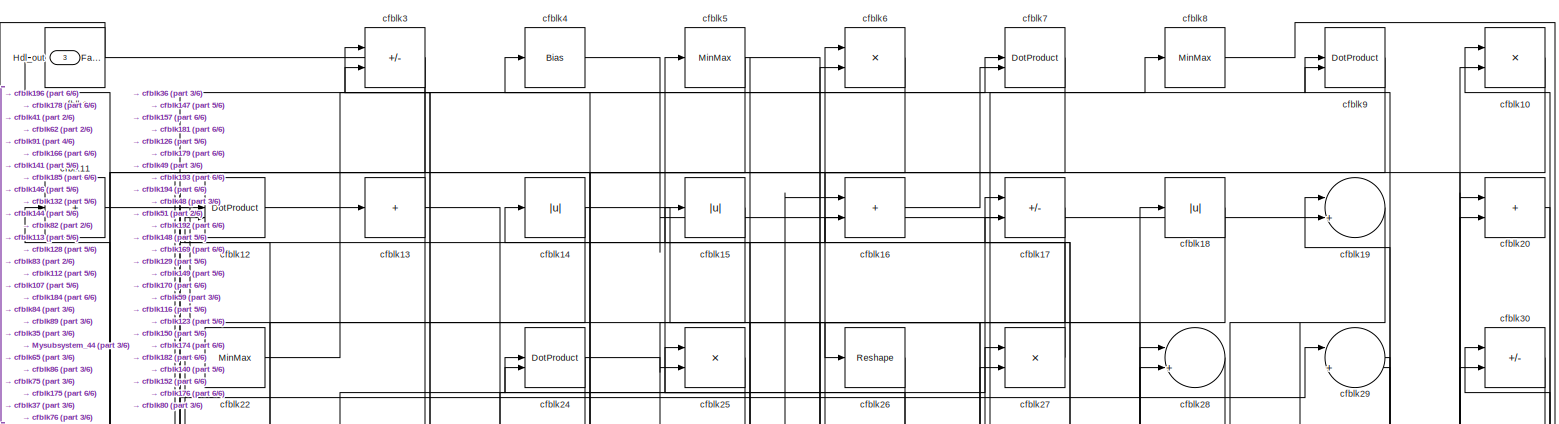
[diagram: root canvas - part 1/6, full width, top band]
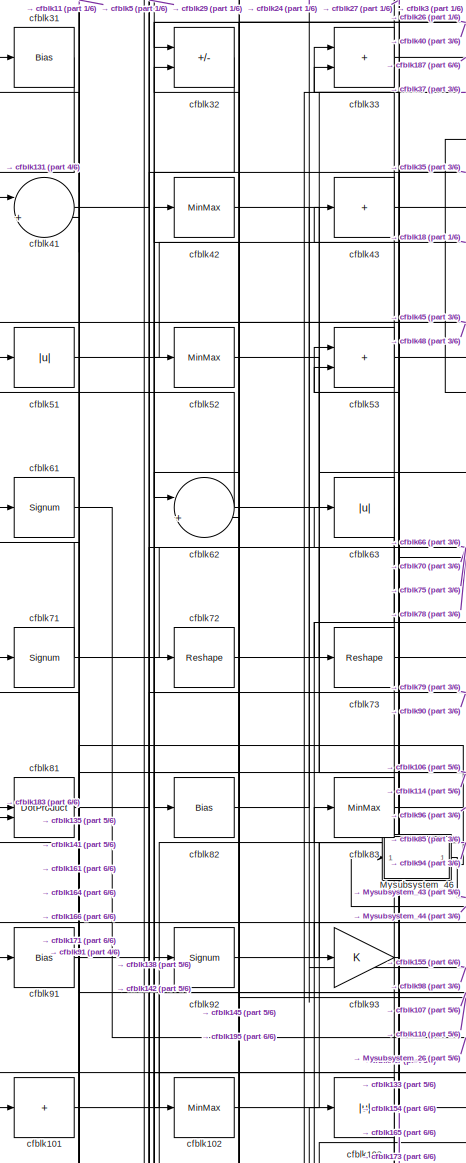
[diagram: root canvas - part 2/6, middle left region]
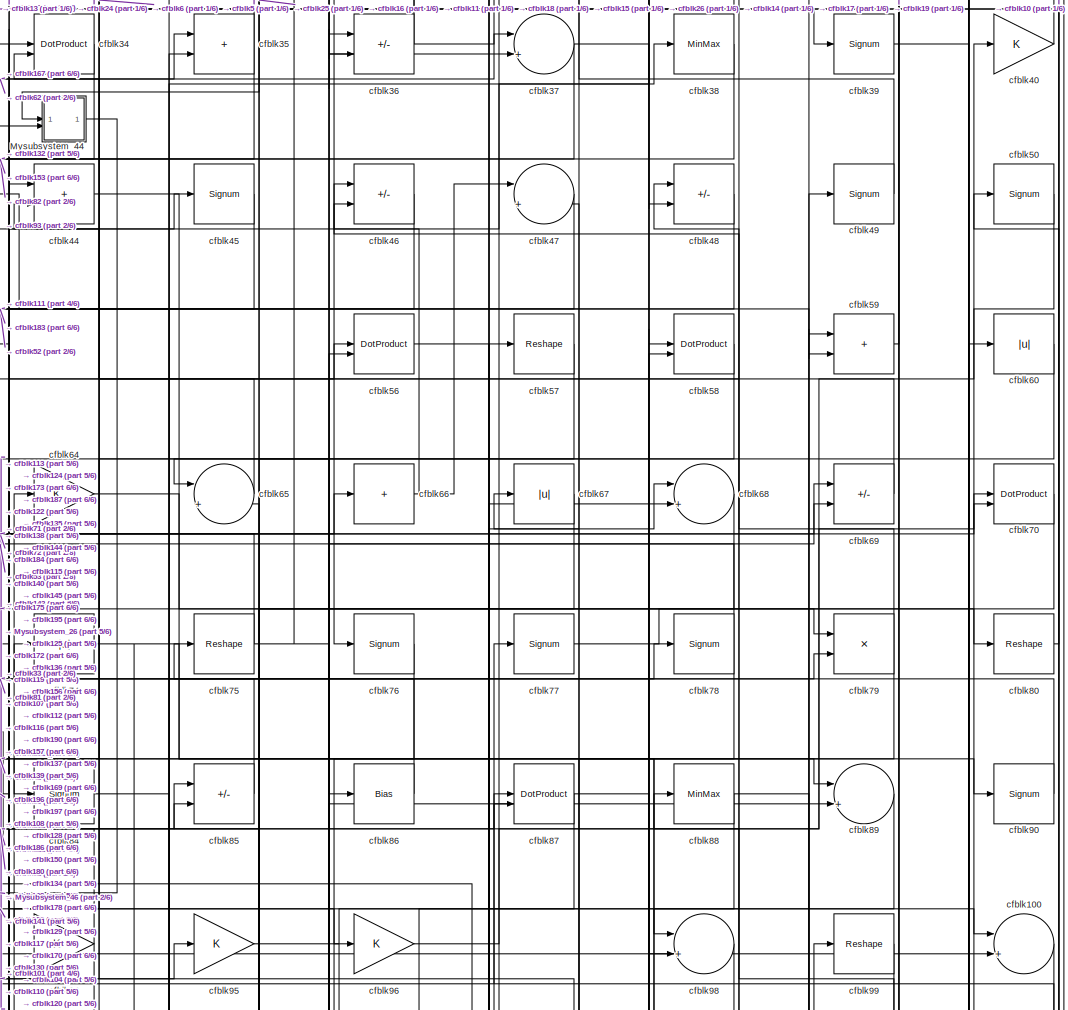
[diagram: root canvas - part 3/6, top center region]
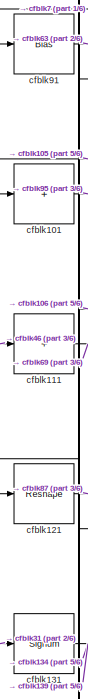
[diagram: root canvas - part 4/6, middle left region]
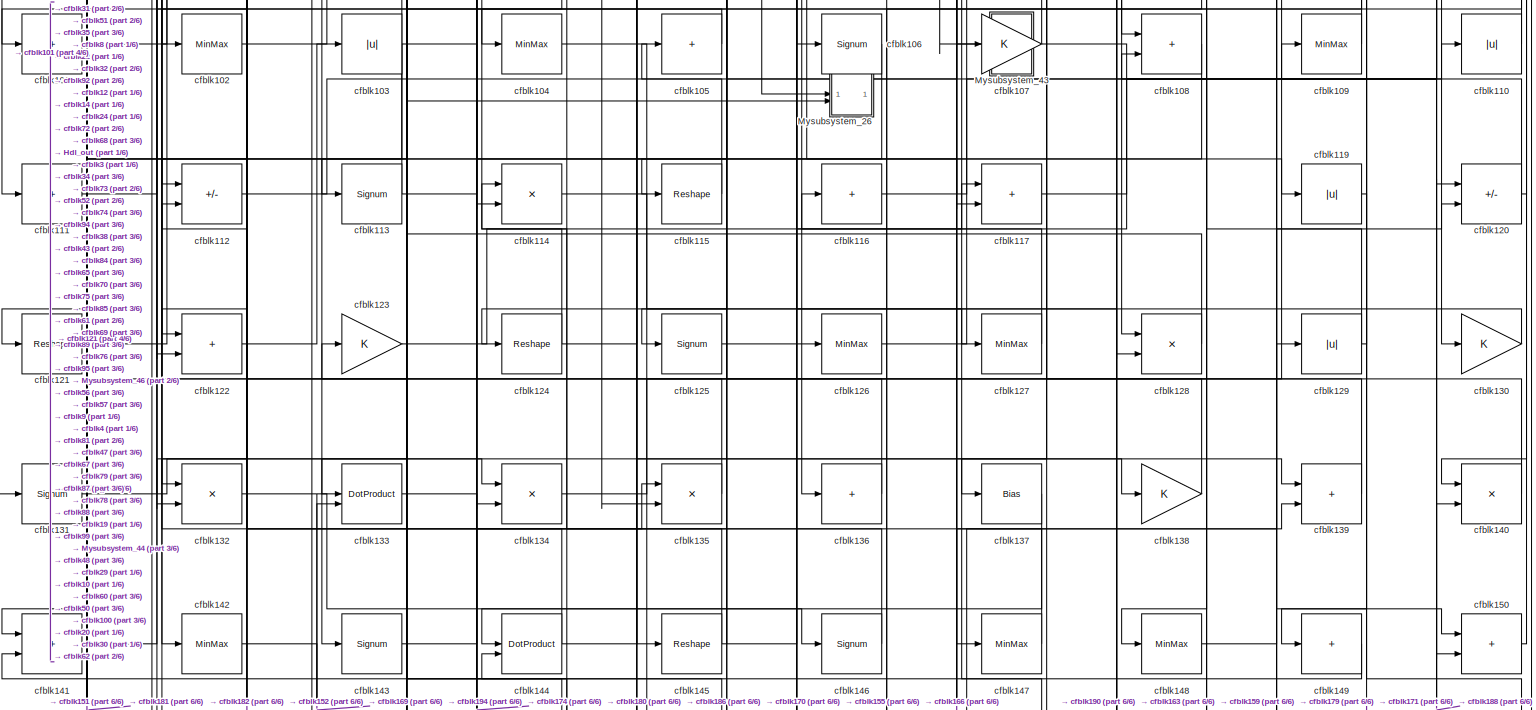
[diagram: root canvas - part 5/6, full width, middle band]
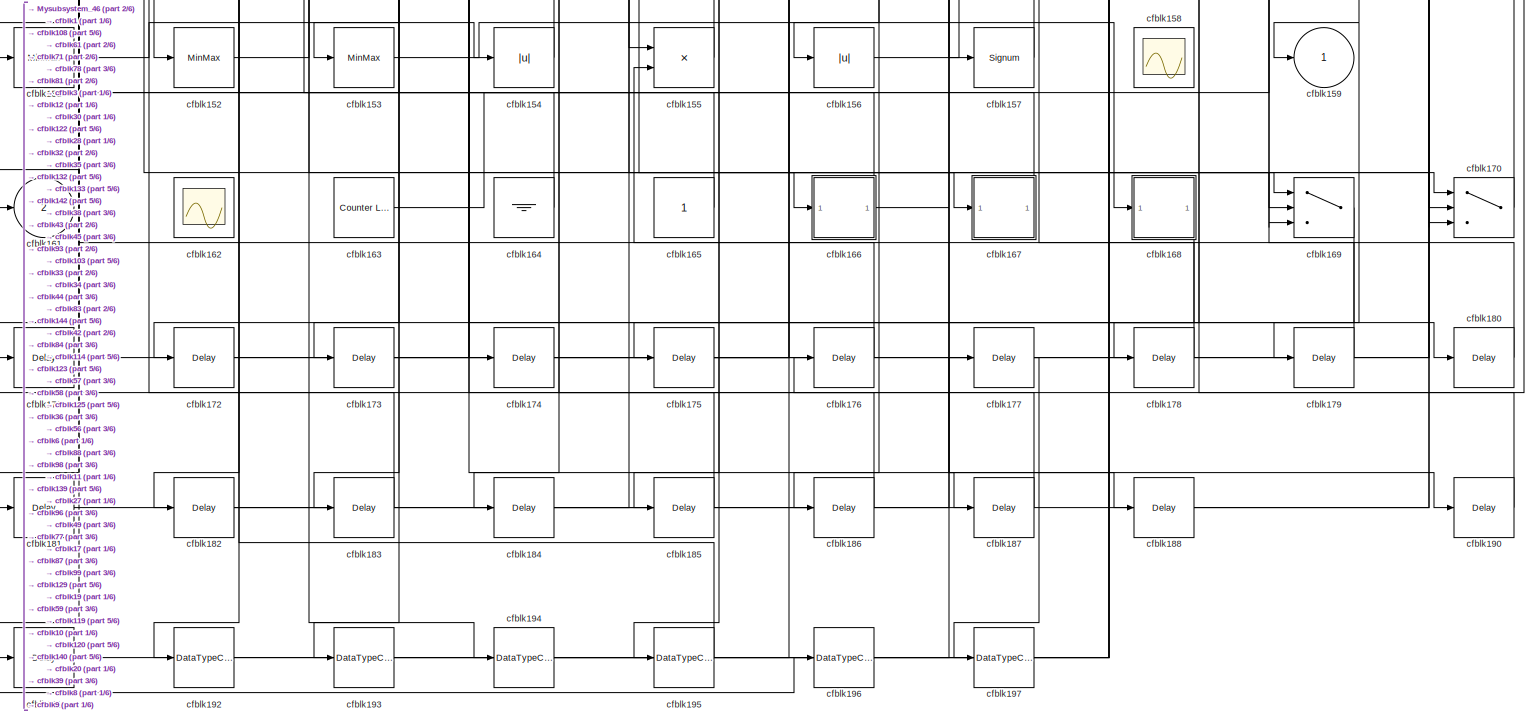
[diagram: root canvas - part 6/6, full width, bottom band]
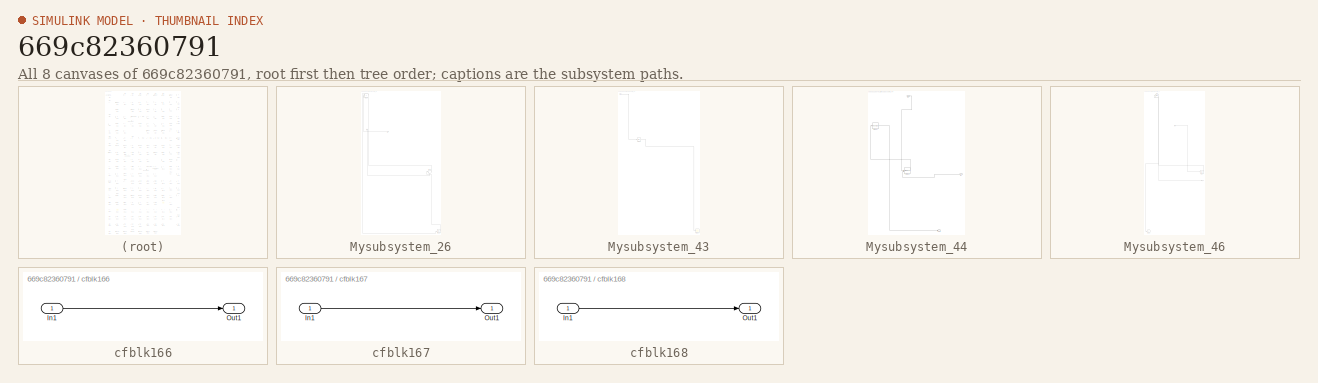
[diagram: thumbnail index - all 8 canvases of the model, root first then tree order]
MODEL slx_669c82360791
KIND model
CONFIG AbsTol = auto
CONFIG EnableMultiTasking = off
CONFIG FixedStep = auto
CONFIG MaxStep = auto
CONFIG MinStep = auto
CONFIG RelTol = 1e-3
CONFIG SampleTimeConstraint = Unconstrained
CONFIG SolverName = VariableStepAuto
CONFIG StartTime = 0.0
CONFIG StopTime = 10.0
BLOCK [Outport] Hdl_out
  OutDataTypeStr = uint8
  Port = 3
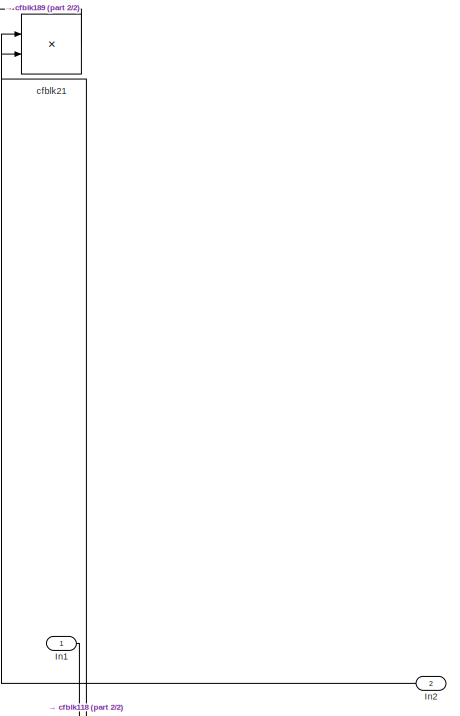
[diagram: Mysubsystem_26 - part 1/2, top left region]
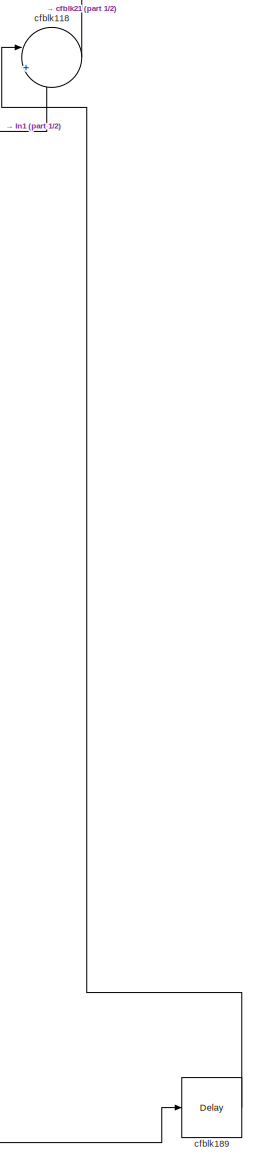
[diagram: Mysubsystem_26 - part 2/2, bottom right region]
BLOCK [SubSystem] Mysubsystem_26
  RTWFcnName = Mysubsystem_26
  RTWFcnNameOpts = User specified
  RTWFileNameOpts = Use function name
  RTWSystemCode = Reusable function
  TreatAsAtomicUnit = on
BLOCK [Inport] Mysubsystem_26/In1
BLOCK [Inport] Mysubsystem_26/In2
  Port = 2
BLOCK [Sum] Mysubsystem_26/cfblk118
  Inputs = |++
BLOCK [Delay] Mysubsystem_26/cfblk189
  InputPortMap = u0
  SampleTime = 1
BLOCK [Product] Mysubsystem_26/cfblk21
  Inputs = */
  RndMeth = Zero
  SaturateOnIntegerOverflow = on
BLOCK [SubSystem] Mysubsystem_43
  RTWFcnName = Mysubsystem_43
  RTWFcnNameOpts = User specified
  RTWFileNameOpts = Use function name
  RTWSystemCode = Reusable function
  TreatAsAtomicUnit = on
BLOCK [Inport] Mysubsystem_43/In1
BLOCK [Scope] Mysubsystem_43/cfblk160
  Floating = off
  NumInputPorts = 1
  ScopeSpecificationString = Simulink.scopes.TimeScopeBlockCfg('CurrentConfiguration', extmgr.ConfigurationSet(extmgr.Configuration('Core','General UI',true),extmgr.Configuration('Core','Source UI',true),extmgr.Configuration('Sources','WiredSimulink',true,'DataLoggingVariableName','ScopeData2','DataLoggingSaveFormat','Array','DataLoggingLimitDataPoints',true,'DataLoggingDecimation','1'),extmgr.Configuration('Visuals','Time Do...<+868ch>
BLOCK [Bias] Mysubsystem_43/cfblk54
  Bias = 0.0
  SaturateOnIntegerOverflow = off
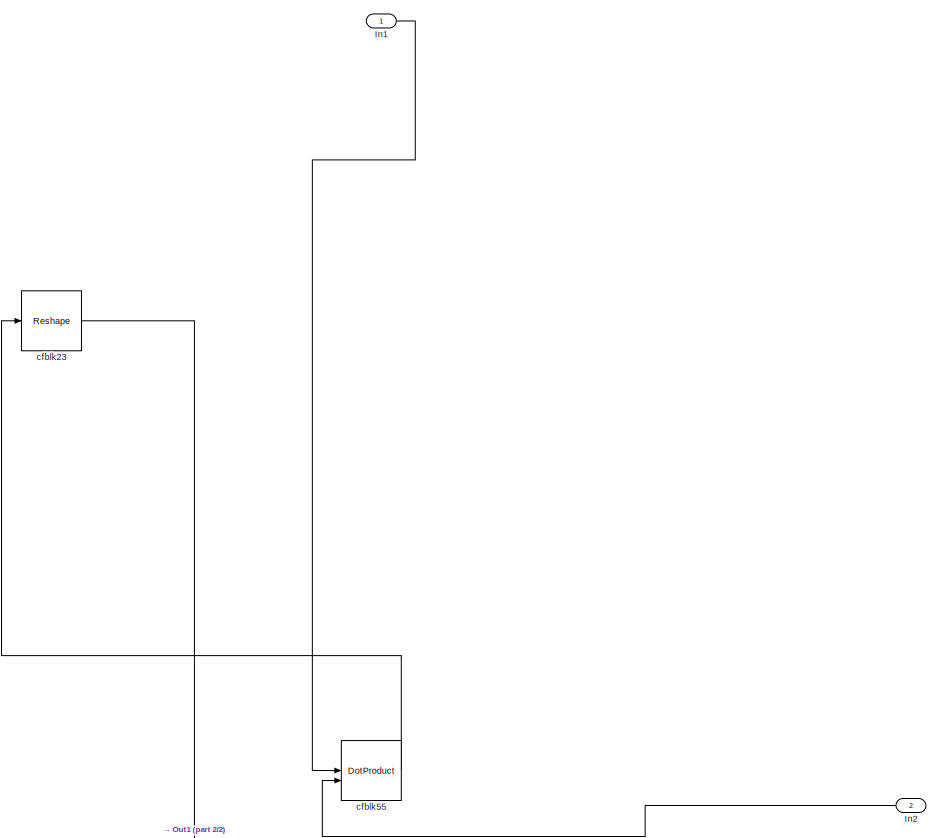
[diagram: Mysubsystem_44 - part 1/2, full width, top band]
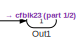
[diagram: Mysubsystem_44 - part 2/2, bottom right region]
BLOCK [SubSystem] Mysubsystem_44
  RTWFcnName = Mysubsystem_44
  RTWFcnNameOpts = User specified
  RTWFileNameOpts = Use function name
  RTWSystemCode = Reusable function
  TreatAsAtomicUnit = on
BLOCK [Inport] Mysubsystem_44/In1
BLOCK [Inport] Mysubsystem_44/In2
  Port = 2
BLOCK [Outport] Mysubsystem_44/Out1
BLOCK [Reshape] Mysubsystem_44/cfblk23
BLOCK [DotProduct] Mysubsystem_44/cfblk55
  OutDataTypeStr = Inherit: Inherit via internal rule
BLOCK [SubSystem] Mysubsystem_46
  RTWFcnName = Mysubsystem_46
  RTWFcnNameOpts = User specified
  RTWFileNameOpts = Use function name
  RTWSystemCode = Reusable function
  TreatAsAtomicUnit = on
BLOCK [Inport] Mysubsystem_46/In1
BLOCK [Outport] Mysubsystem_46/cfblk161
  Port = 2
  VectorParamsAs1DForOutWhenUnconnected = off
BLOCK [Reference] Mysubsystem_46/cfblk2  REF=hdlsllib/Logic and Bit
Operations/Bit Slice
  SourceBlock = hdlsllib/Logic and Bit\nOperations/Bit Slice
  SourceType = Bit Slice
BLOCK [Bias] Mysubsystem_46/cfblk97
  Bias = 0.0
  SaturateOnIntegerOverflow = off
BLOCK [Outport] Mysubsystem_46/y
BLOCK [Reference] cfblk1  REF=hdlsllib/Logic and Bit
Operations/Detect Fall
Nonpositive
  SourceBlock = hdlsllib/Logic and Bit\nOperations/Detect Fall\nNonpositive
  SourceType = Detect Fall Nonpositive
BLOCK [Product] cfblk10
  Inputs = */
  OutDataTypeStr = uint8
  RndMeth = Zero
  SaturateOnIntegerOverflow = on
BLOCK [Sum] cfblk100
  Inputs = |++
  OutDataTypeStr = uint8
BLOCK [Sum] cfblk101
  IconShape = rectangular
  Inputs = +
  OutDataTypeStr = uint8
BLOCK [MinMax] cfblk102
  OutDataTypeStr = uint8
BLOCK [Abs] cfblk103
  OutDataTypeStr = uint8
  SaturateOnIntegerOverflow = off
BLOCK [MinMax] cfblk104
  OutDataTypeStr = uint8
BLOCK [Sum] cfblk105
  IconShape = rectangular
  Inputs = +
  OutDataTypeStr = uint8
BLOCK [Signum] cfblk106
BLOCK [Gain] cfblk107
  OutDataTypeStr = uint8
BLOCK [Sum] cfblk108
  IconShape = rectangular
  OutDataTypeStr = uint8
BLOCK [MinMax] cfblk109
  OutDataTypeStr = uint8
BLOCK [Sum] cfblk11
  IconShape = rectangular
  Inputs = +
  OutDataTypeStr = uint8
BLOCK [Abs] cfblk110
  OutDataTypeStr = uint8
  SaturateOnIntegerOverflow = off
BLOCK [Sum] cfblk111
  IconShape = rectangular
  Inputs = +
  OutDataTypeStr = uint8
BLOCK [Sum] cfblk112
  IconShape = rectangular
  Inputs = +-
  OutDataTypeStr = uint8
BLOCK [Signum] cfblk113
BLOCK [Product] cfblk114
  Inputs = */
  OutDataTypeStr = uint8
  RndMeth = Zero
  SaturateOnIntegerOverflow = on
BLOCK [Reshape] cfblk115
BLOCK [Sum] cfblk116
  IconShape = rectangular
  Inputs = +
  OutDataTypeStr = uint8
BLOCK [Sum] cfblk117
  IconShape = rectangular
  OutDataTypeStr = uint8
BLOCK [Abs] cfblk119
  OutDataTypeStr = uint8
  SaturateOnIntegerOverflow = off
BLOCK [DotProduct] cfblk12
  OutDataTypeStr = uint8
BLOCK [Sum] cfblk120
  IconShape = rectangular
  Inputs = +-
  OutDataTypeStr = uint8
BLOCK [Reshape] cfblk121
BLOCK [Sum] cfblk122
  IconShape = rectangular
  OutDataTypeStr = uint8
BLOCK [Gain] cfblk123
  OutDataTypeStr = uint8
BLOCK [Reshape] cfblk124
BLOCK [Signum] cfblk125
BLOCK [MinMax] cfblk126
  OutDataTypeStr = uint8
BLOCK [MinMax] cfblk127
  OutDataTypeStr = uint8
BLOCK [Product] cfblk128
  Inputs = */
  OutDataTypeStr = uint8
  RndMeth = Zero
  SaturateOnIntegerOverflow = on
BLOCK [Abs] cfblk129
  OutDataTypeStr = uint8
  SaturateOnIntegerOverflow = off
BLOCK [Sum] cfblk13
  IconShape = rectangular
  Inputs = +
  OutDataTypeStr = uint8
BLOCK [Gain] cfblk130
  OutDataTypeStr = uint8
BLOCK [Signum] cfblk131
BLOCK [Product] cfblk132
  Inputs = */
  OutDataTypeStr = uint8
  RndMeth = Zero
  SaturateOnIntegerOverflow = on
BLOCK [DotProduct] cfblk133
  OutDataTypeStr = uint8
BLOCK [Product] cfblk134
  Inputs = */
  OutDataTypeStr = uint8
  RndMeth = Zero
  SaturateOnIntegerOverflow = on
BLOCK [Product] cfblk135
  Inputs = */
  OutDataTypeStr = uint8
  RndMeth = Zero
  SaturateOnIntegerOverflow = on
BLOCK [Sum] cfblk136
  IconShape = rectangular
  Inputs = +
  OutDataTypeStr = uint8
BLOCK [Bias] cfblk137
  Bias = 0.0
  SaturateOnIntegerOverflow = off
BLOCK [Gain] cfblk138
  OutDataTypeStr = uint8
BLOCK [Sum] cfblk139
  IconShape = rectangular
  OutDataTypeStr = uint8
BLOCK [Abs] cfblk14
  OutDataTypeStr = uint8
  SaturateOnIntegerOverflow = off
BLOCK [Product] cfblk140
  Inputs = */
  OutDataTypeStr = uint8
  RndMeth = Zero
  SaturateOnIntegerOverflow = on
BLOCK [Sum] cfblk141
  IconShape = rectangular
  OutDataTypeStr = uint8
BLOCK [MinMax] cfblk142
  OutDataTypeStr = uint8
BLOCK [Signum] cfblk143
BLOCK [DotProduct] cfblk144
  OutDataTypeStr = uint8
BLOCK [Reshape] cfblk145
BLOCK [Signum] cfblk146
BLOCK [MinMax] cfblk147
  OutDataTypeStr = uint8
BLOCK [MinMax] cfblk148
  OutDataTypeStr = uint8
BLOCK [Sum] cfblk149
  IconShape = rectangular
  Inputs = +
  OutDataTypeStr = uint8
BLOCK [Abs] cfblk15
  OutDataTypeStr = uint8
  SaturateOnIntegerOverflow = off
BLOCK [Sum] cfblk150
  IconShape = rectangular
  OutDataTypeStr = uint8
BLOCK [MinMax] cfblk151
  OutDataTypeStr = uint8
BLOCK [MinMax] cfblk152
  OutDataTypeStr = uint8
BLOCK [MinMax] cfblk153
  OutDataTypeStr = uint8
BLOCK [Abs] cfblk154
  OutDataTypeStr = uint8
  SaturateOnIntegerOverflow = off
BLOCK [Product] cfblk155
  Inputs = */
  OutDataTypeStr = uint8
  RndMeth = Zero
  SaturateOnIntegerOverflow = on
BLOCK [Abs] cfblk156
  OutDataTypeStr = uint8
  SaturateOnIntegerOverflow = off
BLOCK [Signum] cfblk157
BLOCK [Scope] cfblk158
  Floating = on
  NumInputPorts = 1
  ScopeSpecificationString = Simulink.scopes.TimeScopeBlockCfg('CurrentConfiguration', extmgr.ConfigurationSet(extmgr.Configuration('Core','General UI',true,'FigureColor',[0.156862745098039 0.156862745098039 0.156862745098039]),extmgr.Configuration('Core','Source UI',true),extmgr.Configuration('Sources','WiredSimulink',true,'DataLoggingVariableName','ScopeData1','DataLoggingSaveFormat','StructureWithTime','DataLoggingLimitDat...<+2713ch>
BLOCK [Outport] cfblk159
  OutDataTypeStr = uint8
  VectorParamsAs1DForOutWhenUnconnected = off
BLOCK [Sum] cfblk16
  IconShape = rectangular
  OutDataTypeStr = uint8
BLOCK [Outport] cfblk161
  OutDataTypeStr = uint8
  Port = 2
  VectorParamsAs1DForOutWhenUnconnected = off
BLOCK [Scope] cfblk162
  Floating = on
  NumInputPorts = 1
  ScopeSpecificationString = Simulink.scopes.TimeScopeBlockCfg('CurrentConfiguration', extmgr.ConfigurationSet(extmgr.Configuration('Core','General UI',true,'FigureColor',[0.156862745098039 0.156862745098039 0.156862745098039]),extmgr.Configuration('Core','Source UI',true),extmgr.Configuration('Sources','WiredSimulink',true,'DataLoggingVariableName','ScopeData1','DataLoggingSaveFormat','StructureWithTime','DataLoggingLimitDat...<+2713ch>
BLOCK [Reference] cfblk163  REF=hdlsllib/Sources/Counter
Limited
  SourceBlock = hdlsllib/Sources/Counter\nLimited
  SourceType = Counter Limited
BLOCK [Ground] cfblk164
BLOCK [Constant] cfblk165
  OutDataTypeStr = uint8
  SampleTime = -1
BLOCK [SubSystem] cfblk166
  LibrarySourceBlock = hdlsllib/Ports &\nSubsystems/Subsystem
BLOCK [Inport] cfblk166/In1
BLOCK [Outport] cfblk166/Out1
BLOCK [SubSystem] cfblk167
  LibrarySourceBlock = hdlsllib/Ports &\nSubsystems/Subsystem
BLOCK [Inport] cfblk167/In1
BLOCK [Outport] cfblk167/Out1
BLOCK [SubSystem] cfblk168
  LibrarySourceBlock = hdlsllib/Ports &\nSubsystems/Subsystem
BLOCK [Inport] cfblk168/In1
BLOCK [Outport] cfblk168/Out1
BLOCK [Switch] cfblk169
  InputSameDT = off
  OutDataTypeStr = uint8
  SaturateOnIntegerOverflow = off
BLOCK [Sum] cfblk17
  IconShape = rectangular
  Inputs = +-
  OutDataTypeStr = uint8
BLOCK [Switch] cfblk170
  InputSameDT = off
  OutDataTypeStr = uint8
  SaturateOnIntegerOverflow = off
BLOCK [Delay] cfblk171
  InputPortMap = u0
  SampleTime = 1
BLOCK [Delay] cfblk172
  InputPortMap = u0
  SampleTime = 1
BLOCK [Delay] cfblk173
  InputPortMap = u0
  SampleTime = 1
BLOCK [Delay] cfblk174
  InputPortMap = u0
  SampleTime = 1
BLOCK [Delay] cfblk175
  InputPortMap = u0
  SampleTime = 1
BLOCK [Delay] cfblk176
  InputPortMap = u0
  SampleTime = 1
BLOCK [Delay] cfblk177
  InputPortMap = u0
  SampleTime = 1
BLOCK [Delay] cfblk178
  InputPortMap = u0
  SampleTime = 1
BLOCK [Delay] cfblk179
  InputPortMap = u0
  SampleTime = 1
BLOCK [Abs] cfblk18
  OutDataTypeStr = uint8
  SaturateOnIntegerOverflow = off
BLOCK [Delay] cfblk180
  InputPortMap = u0
  SampleTime = 1
BLOCK [Delay] cfblk181
  InputPortMap = u0
  SampleTime = 1
BLOCK [Delay] cfblk182
  InputPortMap = u0
  SampleTime = 1
BLOCK [Delay] cfblk183
  InputPortMap = u0
  SampleTime = 1
BLOCK [Delay] cfblk184
  InputPortMap = u0
  SampleTime = 1
BLOCK [Delay] cfblk185
  InputPortMap = u0
  SampleTime = 1
BLOCK [Delay] cfblk186
  InputPortMap = u0
  SampleTime = 1
BLOCK [Delay] cfblk187
  InputPortMap = u0
  SampleTime = 1
BLOCK [Delay] cfblk188
  InputPortMap = u0
  SampleTime = 1
BLOCK [Sum] cfblk19
  Inputs = |++
  OutDataTypeStr = uint8
BLOCK [Delay] cfblk190
  InputPortMap = u0
  SampleTime = 1
BLOCK [Delay] cfblk191
  InputPortMap = u0
  SampleTime = 1
BLOCK [DataTypeConversion] cfblk192
  OutDataTypeStr = uint8
  RndMeth = Floor
  SaturateOnIntegerOverflow = off
BLOCK [DataTypeConversion] cfblk193
  OutDataTypeStr = uint8
  RndMeth = Floor
  SaturateOnIntegerOverflow = off
BLOCK [DataTypeConversion] cfblk194
  OutDataTypeStr = uint8
  RndMeth = Floor
  SaturateOnIntegerOverflow = off
BLOCK [DataTypeConversion] cfblk195
  OutDataTypeStr = uint8
  RndMeth = Floor
  SaturateOnIntegerOverflow = off
BLOCK [DataTypeConversion] cfblk196
  OutDataTypeStr = uint8
  RndMeth = Floor
  SaturateOnIntegerOverflow = off
BLOCK [DataTypeConversion] cfblk197
  OutDataTypeStr = uint8
  RndMeth = Floor
  SaturateOnIntegerOverflow = off
BLOCK [Sum] cfblk20
  IconShape = rectangular
  OutDataTypeStr = uint8
BLOCK [MinMax] cfblk22
  OutDataTypeStr = uint8
BLOCK [DotProduct] cfblk24
  OutDataTypeStr = uint8
BLOCK [Product] cfblk25
  Inputs = */
  OutDataTypeStr = uint8
  RndMeth = Zero
  SaturateOnIntegerOverflow = on
BLOCK [Reshape] cfblk26
BLOCK [Product] cfblk27
  Inputs = */
  OutDataTypeStr = uint8
  RndMeth = Zero
  SaturateOnIntegerOverflow = on
BLOCK [Sum] cfblk28
  Inputs = |++
  OutDataTypeStr = uint8
BLOCK [Sum] cfblk29
  Inputs = |++
  OutDataTypeStr = uint8
BLOCK [Sum] cfblk3
  IconShape = rectangular
  Inputs = +-
  OutDataTypeStr = uint8
BLOCK [Sum] cfblk30
  IconShape = rectangular
  Inputs = +-
  OutDataTypeStr = uint8
BLOCK [Bias] cfblk31
  Bias = 0.0
  SaturateOnIntegerOverflow = off
BLOCK [Sum] cfblk32
  IconShape = rectangular
  Inputs = +-
  OutDataTypeStr = uint8
BLOCK [Sum] cfblk33
  IconShape = rectangular
  OutDataTypeStr = uint8
BLOCK [DotProduct] cfblk34
  OutDataTypeStr = uint8
BLOCK [Sum] cfblk35
  IconShape = rectangular
  OutDataTypeStr = uint8
BLOCK [Sum] cfblk36
  IconShape = rectangular
  Inputs = +-
  OutDataTypeStr = uint8
BLOCK [Sum] cfblk37
  Inputs = |++
  OutDataTypeStr = uint8
BLOCK [MinMax] cfblk38
  OutDataTypeStr = uint8
BLOCK [Signum] cfblk39
BLOCK [Bias] cfblk4
  Bias = 0.0
  SaturateOnIntegerOverflow = off
BLOCK [Gain] cfblk40
  OutDataTypeStr = uint8
BLOCK [Sum] cfblk41
  Inputs = |++
  OutDataTypeStr = uint8
BLOCK [MinMax] cfblk42
  OutDataTypeStr = uint8
BLOCK [Sum] cfblk43
  IconShape = rectangular
  Inputs = +
  OutDataTypeStr = uint8
BLOCK [Sum] cfblk44
  IconShape = rectangular
  OutDataTypeStr = uint8
BLOCK [Signum] cfblk45
BLOCK [Sum] cfblk46
  IconShape = rectangular
  Inputs = +-
  OutDataTypeStr = uint8
BLOCK [Sum] cfblk47
  Inputs = |++
  OutDataTypeStr = uint8
BLOCK [Sum] cfblk48
  IconShape = rectangular
  Inputs = +-
  OutDataTypeStr = uint8
BLOCK [Signum] cfblk49
BLOCK [MinMax] cfblk5
  OutDataTypeStr = uint8
BLOCK [Signum] cfblk50
BLOCK [Abs] cfblk51
  OutDataTypeStr = uint8
  SaturateOnIntegerOverflow = off
BLOCK [MinMax] cfblk52
  OutDataTypeStr = uint8
BLOCK [Sum] cfblk53
  IconShape = rectangular
  OutDataTypeStr = uint8
BLOCK [DotProduct] cfblk56
  OutDataTypeStr = uint8
BLOCK [Reshape] cfblk57
BLOCK [DotProduct] cfblk58
  OutDataTypeStr = uint8
BLOCK [Sum] cfblk59
  IconShape = rectangular
  OutDataTypeStr = uint8
BLOCK [Product] cfblk6
  Inputs = */
  OutDataTypeStr = uint8
  RndMeth = Zero
  SaturateOnIntegerOverflow = on
BLOCK [Abs] cfblk60
  OutDataTypeStr = uint8
  SaturateOnIntegerOverflow = off
BLOCK [Signum] cfblk61
BLOCK [Sum] cfblk62
  Inputs = |++
  OutDataTypeStr = uint8
BLOCK [Abs] cfblk63
  OutDataTypeStr = uint8
  SaturateOnIntegerOverflow = off
BLOCK [Gain] cfblk64
  OutDataTypeStr = uint8
BLOCK [Sum] cfblk65
  Inputs = |++
  OutDataTypeStr = uint8
BLOCK [Sum] cfblk66
  IconShape = rectangular
  Inputs = +
  OutDataTypeStr = uint8
BLOCK [Abs] cfblk67
  OutDataTypeStr = uint8
  SaturateOnIntegerOverflow = off
BLOCK [Sum] cfblk68
  Inputs = |++
  OutDataTypeStr = uint8
BLOCK [Sum] cfblk69
  IconShape = rectangular
  Inputs = +-
  OutDataTypeStr = uint8
BLOCK [DotProduct] cfblk7
  OutDataTypeStr = uint8
BLOCK [DotProduct] cfblk70
  OutDataTypeStr = uint8
BLOCK [Signum] cfblk71
BLOCK [Reshape] cfblk72
BLOCK [Reshape] cfblk73
BLOCK [Abs] cfblk74
  OutDataTypeStr = uint8
  SaturateOnIntegerOverflow = off
BLOCK [Reshape] cfblk75
BLOCK [Signum] cfblk76
BLOCK [Signum] cfblk77
BLOCK [Signum] cfblk78
BLOCK [Product] cfblk79
  Inputs = */
  OutDataTypeStr = uint8
  RndMeth = Zero
  SaturateOnIntegerOverflow = on
BLOCK [MinMax] cfblk8
  OutDataTypeStr = uint8
BLOCK [Reshape] cfblk80
BLOCK [DotProduct] cfblk81
  OutDataTypeStr = uint8
BLOCK [Bias] cfblk82
  Bias = 0.0
  SaturateOnIntegerOverflow = off
BLOCK [MinMax] cfblk83
  OutDataTypeStr = uint8
BLOCK [Signum] cfblk84
BLOCK [Sum] cfblk85
  IconShape = rectangular
  Inputs = +-
  OutDataTypeStr = uint8
BLOCK [Bias] cfblk86
  Bias = 0.0
  SaturateOnIntegerOverflow = off
BLOCK [DotProduct] cfblk87
  OutDataTypeStr = uint8
BLOCK [MinMax] cfblk88
  OutDataTypeStr = uint8
BLOCK [Sum] cfblk89
  Inputs = |++
  OutDataTypeStr = uint8
BLOCK [DotProduct] cfblk9
  OutDataTypeStr = uint8
BLOCK [Signum] cfblk90
BLOCK [Bias] cfblk91
  Bias = 0.0
  SaturateOnIntegerOverflow = off
BLOCK [Signum] cfblk92
BLOCK [Gain] cfblk93
  OutDataTypeStr = uint8
BLOCK [Gain] cfblk94
  OutDataTypeStr = uint8
BLOCK [Gain] cfblk95
  OutDataTypeStr = uint8
BLOCK [Gain] cfblk96
  OutDataTypeStr = uint8
BLOCK [Sum] cfblk98
  Inputs = |++
  OutDataTypeStr = uint8
BLOCK [Reshape] cfblk99
LINE Mysubsystem_26/In1:1 -> Mysubsystem_26/cfblk118:2
LINE Mysubsystem_26/In2:1 -> Mysubsystem_26/cfblk21:2
LINE Mysubsystem_26/cfblk118:1 -> Mysubsystem_26/cfblk21:1
LINE Mysubsystem_26/cfblk189:1 -> Mysubsystem_26/cfblk118:1
LINE Mysubsystem_26/cfblk21:1 -> Mysubsystem_26/cfblk189:1
LINE Mysubsystem_43/In1:1 -> Mysubsystem_43/cfblk54:1
LINE Mysubsystem_43/cfblk54:1 -> Mysubsystem_43/cfblk160:1
LINE Mysubsystem_44/In1:1 -> Mysubsystem_44/cfblk55:1
LINE Mysubsystem_44/In2:1 -> Mysubsystem_44/cfblk55:2
LINE Mysubsystem_44/cfblk23:1 -> Mysubsystem_44/Out1:1
LINE Mysubsystem_44/cfblk55:1 -> Mysubsystem_44/cfblk23:1
LINE Mysubsystem_44:1 -> Mysubsystem_46:1
LINE Mysubsystem_46/In1:1 -> Mysubsystem_46/cfblk97:1
NET Mysubsystem_46/cfblk2:1 -> Mysubsystem_46/cfblk161:1, Mysubsystem_46/y:1
LINE Mysubsystem_46/cfblk97:1 -> Mysubsystem_46/cfblk2:1
LINE Mysubsystem_46:1 -> Mysubsystem_43:1
LINE Mysubsystem_46:2 -> cfblk161:1
LINE cfblk100:1 -> cfblk104:1
LINE cfblk101:1 -> cfblk95:1
LINE cfblk102:1 -> cfblk85:1
NET cfblk103:1 -> cfblk180:1, cfblk181:1
LINE cfblk104:1 -> cfblk127:1
LINE cfblk105:1 -> cfblk101:1
LINE cfblk106:1 -> cfblk121:1
NET cfblk107:1 -> cfblk110:1, cfblk4:1, cfblk81:2
LINE cfblk108:1 -> cfblk151:1
NET cfblk109:1 -> Mysubsystem_44:2, cfblk48:1
NET cfblk10:1 -> cfblk150:2, cfblk26:1
NET cfblk110:1 -> cfblk62:2, cfblk87:2
LINE cfblk111:1 -> cfblk69:1
LINE cfblk112:1 -> cfblk57:1
NET cfblk113:1 -> Hdl_out:1, cfblk56:1
LINE cfblk114:1 -> cfblk170:1
LINE cfblk115:1 -> cfblk105:1
NET cfblk116:1 -> cfblk30:2, cfblk68:2
LINE cfblk117:1 -> cfblk60:1
NET cfblk119:1 -> cfblk159:1, cfblk179:1
NET cfblk11:1 -> cfblk157:1, cfblk16:2, cfblk86:1
NET cfblk120:1 -> cfblk50:1, cfblk75:1
LINE cfblk121:1 -> cfblk87:1
NET cfblk122:1 -> cfblk103:1, cfblk182:1
LINE cfblk123:1 -> cfblk20:1
NET cfblk124:1 -> cfblk74:1, cfblk78:1
NET cfblk125:1 -> cfblk170:2, cfblk69:2
LINE cfblk126:1 -> cfblk9:1
LINE cfblk127:1 -> cfblk116:1
LINE cfblk128:1 -> cfblk3:1
NET cfblk129:1 -> cfblk29:2, cfblk88:1
LINE cfblk12:1 -> cfblk13:1
LINE cfblk130:1 -> cfblk124:1
NET cfblk131:1 -> cfblk134:1, cfblk139:1
NET cfblk132:1 -> cfblk146:1, cfblk194:1
LINE cfblk133:1 -> cfblk174:1
LINE cfblk134:1 -> cfblk99:1
LINE cfblk135:1 -> cfblk51:1
LINE cfblk136:1 -> cfblk112:2
LINE cfblk137:1 -> cfblk144:1
LINE cfblk138:1 -> cfblk92:1
NET cfblk139:1 -> cfblk47:2, cfblk67:1
LINE cfblk13:1 -> cfblk59:2
NET cfblk140:1 -> cfblk109:1, cfblk85:2
NET cfblk141:1 -> cfblk31:1, cfblk8:1
LINE cfblk142:1 -> cfblk169:1
LINE cfblk143:1 -> cfblk135:1
NET cfblk144:1 -> cfblk12:2, cfblk38:1
NET cfblk145:1 -> cfblk117:1, cfblk126:1, cfblk65:2, cfblk72:1, cfblk89:2
LINE cfblk146:1 -> cfblk22:1
LINE cfblk147:1 -> cfblk114:1
LINE cfblk148:1 -> cfblk120:2
LINE cfblk149:1 -> cfblk141:2
NET cfblk14:1 -> cfblk132:1, cfblk147:1, cfblk48:2
LINE cfblk150:1 -> cfblk30:1
LINE cfblk151:1 -> cfblk154:1
LINE cfblk152:1 -> cfblk133:2
LINE cfblk153:1 -> cfblk168:1
LINE cfblk154:1 -> cfblk83:1
LINE cfblk155:1 -> cfblk123:1
LINE cfblk156:1 -> cfblk49:1
LINE cfblk157:1 -> cfblk77:1
LINE cfblk15:1 -> cfblk25:2
LINE cfblk163:1 -> cfblk129:1
LINE cfblk164:1 -> cfblk71:1
NET cfblk165:1 -> cfblk32:2, cfblk43:1
LINE cfblk166/In1:1 -> cfblk166/Out1:1
NET cfblk166:1 -> cfblk139:2, cfblk188:1, cfblk61:1
LINE cfblk167/In1:1 -> cfblk167/Out1:1
LINE cfblk167:1 -> cfblk35:1
LINE cfblk168/In1:1 -> cfblk168/Out1:1
LINE cfblk168:1 -> cfblk172:1
LINE cfblk169:1 -> cfblk185:1
LINE cfblk16:1 -> cfblk7:2
LINE cfblk170:1 -> cfblk9:2
LINE cfblk171:1 -> cfblk140:2
LINE cfblk172:1 -> cfblk36:1
LINE cfblk173:1 -> cfblk34:1
LINE cfblk174:1 -> cfblk20:2
LINE cfblk175:1 -> cfblk6:2
LINE cfblk176:1 -> cfblk155:2
LINE cfblk177:1 -> cfblk197:1
LINE cfblk178:1 -> cfblk1:1
LINE cfblk179:1 -> cfblk17:2
LINE cfblk17:1 -> cfblk65:1
LINE cfblk180:1 -> cfblk59:1
LINE cfblk181:1 -> cfblk27:2
LINE cfblk182:1 -> cfblk10:2
LINE cfblk183:1 -> cfblk81:1
LINE cfblk184:1 -> cfblk35:2
LINE cfblk185:1 -> cfblk12:1
LINE cfblk186:1 -> cfblk144:2
LINE cfblk187:1 -> cfblk44:1
LINE cfblk188:1 -> cfblk120:1
LINE cfblk18:1 -> cfblk76:1
LINE cfblk190:1 -> cfblk108:2
LINE cfblk191:1 -> cfblk56:2
LINE cfblk192:1 -> cfblk177:1
LINE cfblk193:1 -> cfblk28:1
LINE cfblk194:1 -> cfblk28:2
LINE cfblk195:1 -> cfblk42:1
LINE cfblk196:1 -> cfblk58:1
LINE cfblk197:1 -> cfblk58:2
NET cfblk19:1 -> cfblk148:1, cfblk169:2
LINE cfblk1:1 -> cfblk196:1
LINE cfblk20:1 -> cfblk140:1
LINE cfblk22:1 -> cfblk7:1
NET cfblk24:1 -> cfblk112:1, cfblk89:1
LINE cfblk25:1 -> cfblk24:2
NET cfblk26:1 -> cfblk36:2, cfblk62:1
LINE cfblk27:1 -> cfblk6:1
LINE cfblk28:1 -> cfblk192:1
LINE cfblk29:1 -> cfblk149:1
LINE cfblk30:1 -> cfblk152:1
LINE cfblk31:1 -> cfblk131:1
LINE cfblk32:1 -> cfblk142:1
LINE cfblk33:1 -> cfblk187:1
LINE cfblk34:1 -> cfblk113:1
NET cfblk35:1 -> cfblk132:2, cfblk5:1, cfblk82:1
NET cfblk36:1 -> cfblk15:1, cfblk17:1
NET cfblk37:1 -> cfblk100:2, cfblk93:1
LINE cfblk38:1 -> cfblk153:1
LINE cfblk39:1 -> cfblk170:3
LINE cfblk3:1 -> cfblk166:1
NET cfblk40:1 -> cfblk32:1, cfblk39:1
LINE cfblk41:1 -> cfblk29:1
NET cfblk42:1 -> cfblk155:1, cfblk98:2
LINE cfblk43:1 -> cfblk145:1
LINE cfblk44:1 -> cfblk90:1
NET cfblk45:1 -> cfblk183:1, cfblk52:1
LINE cfblk46:1 -> cfblk111:1
LINE cfblk47:1 -> cfblk134:2
LINE cfblk48:1 -> cfblk102:1
LINE cfblk49:1 -> cfblk14:1
LINE cfblk4:1 -> cfblk19:2
LINE cfblk50:1 -> cfblk130:1
LINE cfblk51:1 -> cfblk18:1
NET cfblk52:1 -> cfblk106:1, cfblk114:2
LINE cfblk53:1 -> cfblk45:1
LINE cfblk56:1 -> cfblk107:1
LINE cfblk57:1 -> cfblk175:1
LINE cfblk58:1 -> cfblk195:1
LINE cfblk59:1 -> cfblk19:1
NET cfblk5:1 -> Mysubsystem_44:1, cfblk37:2, cfblk41:2
LINE cfblk60:1 -> cfblk94:1
LINE cfblk61:1 -> Mysubsystem_26:1
NET cfblk62:1 -> cfblk11:1, cfblk37:1
LINE cfblk63:1 -> cfblk73:1
LINE cfblk64:1 -> cfblk80:1
LINE cfblk65:1 -> cfblk34:2
NET cfblk66:1 -> cfblk46:1, cfblk47:1
LINE cfblk67:1 -> cfblk115:1
LINE cfblk68:1 -> cfblk143:1
LINE cfblk69:1 -> cfblk44:2
LINE cfblk6:1 -> cfblk84:1
LINE cfblk70:1 -> cfblk125:1
NET cfblk71:1 -> cfblk41:1, cfblk66:1
LINE cfblk72:1 -> cfblk70:1
NET cfblk73:1 -> cfblk117:2, cfblk133:1
NET cfblk74:1 -> cfblk108:1, cfblk135:2
NET cfblk75:1 -> Mysubsystem_26:2, cfblk128:2, cfblk16:1, cfblk33:2
LINE cfblk76:1 -> cfblk136:1
LINE cfblk77:1 -> cfblk79:1
NET cfblk78:1 -> cfblk128:1, cfblk191:1, cfblk53:1
NET cfblk79:1 -> cfblk137:1, cfblk46:2
LINE cfblk7:1 -> cfblk91:1
LINE cfblk80:1 -> cfblk10:1
NET cfblk81:1 -> cfblk171:1, cfblk79:2
LINE cfblk82:1 -> cfblk24:1
NET cfblk83:1 -> cfblk27:1, cfblk3:2, cfblk96:1
NET cfblk84:1 -> cfblk138:1, cfblk167:1
LINE cfblk85:1 -> cfblk64:1
LINE cfblk86:1 -> cfblk25:1
NET cfblk87:1 -> cfblk141:1, cfblk169:3
NET cfblk88:1 -> cfblk150:1, cfblk156:1
LINE cfblk89:1 -> cfblk98:1
LINE cfblk8:1 -> cfblk176:1
LINE cfblk90:1 -> cfblk33:1
LINE cfblk91:1 -> cfblk63:1
LINE cfblk92:1 -> cfblk70:2
LINE cfblk93:1 -> cfblk173:1
NET cfblk94:1 -> cfblk122:1, cfblk122:2, cfblk53:2
NET cfblk95:1 -> cfblk100:1, cfblk119:1
NET cfblk96:1 -> cfblk190:1, cfblk40:1, cfblk68:1
LINE cfblk98:1 -> cfblk186:1
NET cfblk99:1 -> cfblk178:1, cfblk193:1
LINE cfblk9:1 -> cfblk184:1
note: NET lines group one-source signal fan-out (src -> all destinations, sorted); 1:1 wires keep LINE
